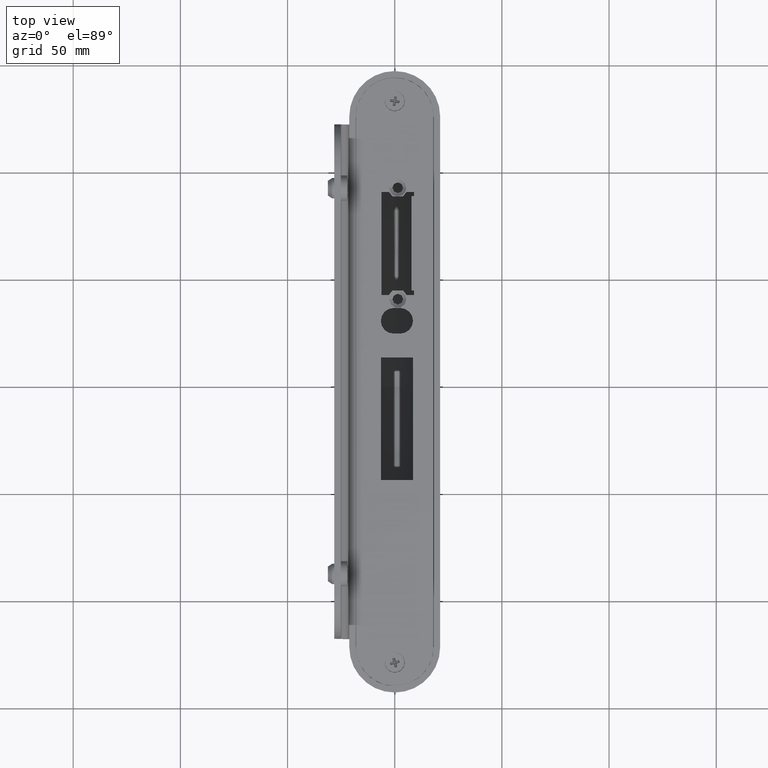
[diagram: clean part render]
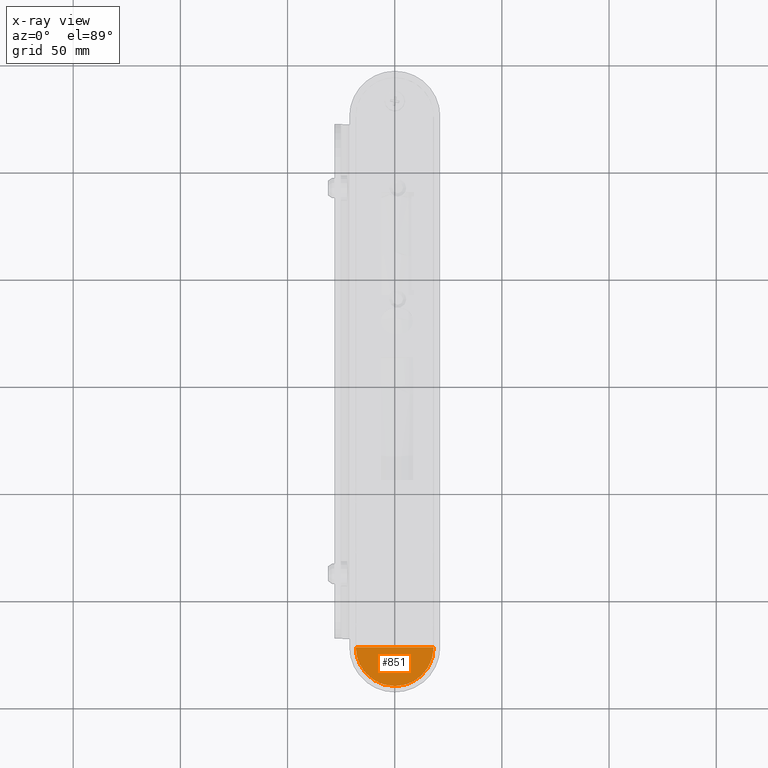
[diagram: x-ray — body ghosted, one internal face saturated and labeled with its STEP entity id]
A machine part, top view, then the same camera in x-ray: the body is ghosted and one INTERNAL B-rep face — a face not visible from any outside direction — is saturated and labeled: STEP entity #851.
In plain terms, the highlighted planar face has unit normal (0, 0, 1).
Its self-contained STEP definition (entity closure, byte-faithful):
#154 = DIRECTION ( 'NONE',  ( 1.000000000000000000, 0.000000000000000000, -0.000000000000000000 ) ) ;
#700 = CARTESIAN_POINT ( 'NONE',  ( -2.099999999999987210, -131.0000000000000000, -3.499999999999956923 ) ) ;
#719 = CARTESIAN_POINT ( 'NONE',  ( 16.57763960742311227, -131.2880444152574171, -3.499999999999958700 ) ) ;
#826 = CIRCLE ( 'NONE', #14465, 2.099999999999988987 ) ;
#851 = ADVANCED_FACE ( 'NONE', ( #3470, #6978 ), #5021, .T. ) ;
#1035 = CARTESIAN_POINT ( 'NONE',  ( 6.425966443938514239, -140.7947670916811944, -3.499999999999958256 ) ) ;
#1076 = CARTESIAN_POINT ( 'NONE',  ( -17.03090851931629857, -130.1980332967270044, -3.499999999999957367 ) ) ;
#1131 = CARTESIAN_POINT ( 'NONE',  ( -16.34835505241967368, -131.8389881563924462, -3.499999999999957812 ) ) ;
#1181 = CARTESIAN_POINT ( 'NONE',  ( -2.970426697695543794, -141.7224988217406008, -3.499999999999959144 ) ) ;
#1242 = AXIS2_PLACEMENT_3D ( 'NONE', #13771, #12455, #12285 ) ;
#1852 = CARTESIAN_POINT ( 'NONE',  ( 17.72531122719844987, -127.9249024389655034, -3.499999999999958256 ) ) ;
#2065 = CARTESIAN_POINT ( 'NONE',  ( 4.137642837378699312, -141.4902094463775484, -3.499999999999957812 ) ) ;
#2174 = CARTESIAN_POINT ( 'NONE',  ( 2.370436722894291304, -141.8116294735507665, -3.499999999999958700 ) ) ;
#2451 = CARTESIAN_POINT ( 'NONE',  ( -4.711610252952660005, -141.3760321153440884, -3.499999999999959144 ) ) ;
#2486 = EDGE_CURVE ( 'NONE', #4855, #5376, #3538, .T. ) ;
#2759 = CARTESIAN_POINT ( 'NONE',  ( -7.506644097580084996, -140.3469968225771538, -3.499999999999958256 ) ) ;
#2894 = VERTEX_POINT ( 'NONE', #700 ) ;
#3111 = CARTESIAN_POINT ( 'NONE',  ( 18.19993278026325711, -123.7999999999999972, -3.499999999999958256 ) ) ;
#3117 = CARTESIAN_POINT ( 'NONE',  ( 16.32381594625852728, -131.8237004566815642, -3.499999999999958700 ) ) ;
#3169 = CARTESIAN_POINT ( 'NONE',  ( 10.59978566233712982, -138.5624185121107530, -3.499999999999958256 ) ) ;
#3186 = CARTESIAN_POINT ( 'NONE',  ( -18.19993278026325711, -123.7999999999999972, -3.499999999999958256 ) ) ;
#3226 = CARTESIAN_POINT ( 'NONE',  ( 17.57870540353523481, -128.5042711821859882, -3.499999999999959144 ) ) ;
#3470 = FACE_BOUND ( 'NONE', #4282, .T. ) ;
#3538 = B_SPLINE_CURVE_WITH_KNOTS ( 'NONE', 3,
 ( #6835, #9277, #9321, #1852, #3226, #4488, #10596, #719, #3117, #13213, #4384, #13109, #5624, #14368, #9381, #15722, #3169, #11908, #4435, #1035, #5841, #4543, #2065, #15995, #2174, #13424, #8344, #10870 ),
 .UNSPECIFIED., .F., .F.,
 ( 4, 2, 2, 2, 2, 2, 2, 2, 2, 2, 2, 2, 2, 4 ),
 ( 0.08798751599913462451, 0.09153595532130566481, 0.09331017498239121966, 0.09508439464347678838, 0.09685861430456234322, 0.09863283396564789807, 0.1021812732878191049, 0.1039554929489047014, 0.1057297126099902979, 0.1092781519321614492, 0.1110523715932470318, 0.1128265912543326144, 0.1146008109154182109, 0.1163750305765038073 ),
 .UNSPECIFIED. ) ;
#3710 = CARTESIAN_POINT ( 'NONE',  ( -17.72798295566711957, -127.9127096710654428, -3.499999999999958700 ) ) ;
#3763 = CARTESIAN_POINT ( 'NONE',  ( -0.5946516691151471079, -141.9568596440481940, -3.499999999999958700 ) ) ;
#3971 = CARTESIAN_POINT ( 'NONE',  ( -18.19999999999999929, -123.7999999999999972, -3.499999999999958256 ) ) ;
#4282 = EDGE_LOOP ( 'NONE', ( #13133, #6623 ) ) ;
#4308 = EDGE_LOOP ( 'NONE', ( #5647, #8409, #9343 ) ) ;
#4384 = CARTESIAN_POINT ( 'NONE',  ( 15.45140728858579671, -133.3899026571880597, -3.499999999999958700 ) ) ;
#4435 = CARTESIAN_POINT ( 'NONE',  ( 8.077951886023051031, -140.1089221733890327, -3.499999999999958700 ) ) ;
#4488 = CARTESIAN_POINT ( 'NONE',  ( 17.23207616496944183, -129.6389525090205836, -3.499999999999960032 ) ) ;
#4543 = CARTESIAN_POINT ( 'NONE',  ( 4.716327226025823549, -141.3451064855083814, -3.499999999999958256 ) ) ;
#4736 = LINE ( 'NONE', #3971, #7653 ) ;
#4855 = VERTEX_POINT ( 'NONE', #3111 ) ;
#5021 = PLANE ( 'NONE',  #9988 ) ;
#5039 = CARTESIAN_POINT ( 'NONE',  ( 2.099999999999990763, -131.0000000000000000, -3.499999999999956923 ) ) ;
#5376 = VERTEX_POINT ( 'NONE', #12256 ) ;
#5624 = CARTESIAN_POINT ( 'NONE',  ( 13.70510576566193883, -135.7888591572502719, -3.499999999999958256 ) ) ;
#5647 = ORIENTED_EDGE ( 'NONE', *, *, #2486, .F. ) ;
#5841 = CARTESIAN_POINT ( 'NONE',  ( 5.859340788937852373, -140.9979369603669568, -3.499999999999957812 ) ) ;
#5999 = CARTESIAN_POINT ( 'NONE',  ( -13.27650600429843308, -136.2182467566517232, -3.499999999999959144 ) ) ;
#6107 = CARTESIAN_POINT ( 'NONE',  ( -5.846030411074127464, -141.0337013838679638, -3.499999999999958700 ) ) ;
#6219 = CARTESIAN_POINT ( 'NONE',  ( -17.23245679665010499, -129.6383981693616647, -3.499999999999956923 ) ) ;
#6381 = B_SPLINE_CURVE_WITH_KNOTS ( 'NONE', 3,
 ( #8666, #3763, #12271, #12494, #1181, #2451, #6107, #2759, #8552, #14832, #13469, #7249, #13698, #12388, #7359, #5999, #9918, #14888, #14722, #15983, #1131, #1076, #6219, #7415, #3710, #9809, #9975, #12441 ),
 .UNSPECIFIED., .F., .F.,
 ( 4, 2, 2, 2, 2, 2, 2, 2, 2, 2, 2, 2, 2, 4 ),
 ( 0.09665589401127945568, 0.09843003876489891946, 0.1002041835185183694, 0.1037524730257572830, 0.1055266177793767468, 0.1073007625329961967, 0.1090749072866156466, 0.1108490520402351104, 0.1126231967938545742, 0.1143973415474740241, 0.1179456310547130071, 0.1197197758083324848, 0.1214939205619519763, 0.1250422100691910288 ),
 .UNSPECIFIED. ) ;
#6623 = ORIENTED_EDGE ( 'NONE', *, *, #15411, .F. ) ;
#6835 = CARTESIAN_POINT ( 'NONE',  ( 18.19993278026325711, -123.7999999999999972, -3.499999999999958256 ) ) ;
#6978 = FACE_OUTER_BOUND ( 'NONE', #4308, .T. ) ;
#7019 = DIRECTION ( 'NONE',  ( -0.000000000000000000, -0.000000000000000000, 1.000000000000000000 ) ) ;
#7236 = CARTESIAN_POINT ( 'NONE',  ( 1.714505518806298385E-15, -131.0000000000000000, -3.499999999999956923 ) ) ;
#7249 = CARTESIAN_POINT ( 'NONE',  ( -10.58571707382591676, -138.5724317891713326, -3.499999999999958256 ) ) ;
#7359 = CARTESIAN_POINT ( 'NONE',  ( -12.43041577165636369, -137.0625292993982498, -3.499999999999957812 ) ) ;
#7415 = CARTESIAN_POINT ( 'NONE',  ( -17.58193255195702775, -128.4930083792081916, -3.499999999999959144 ) ) ;
#7653 = VECTOR ( 'NONE', #11829, 1000.000000000000000 ) ;
#7965 = CIRCLE ( 'NONE', #1242, 2.099999999999988987 ) ;
#8264 = EDGE_CURVE ( 'NONE', #5376, #15666, #6381, .T. ) ;
#8344 = CARTESIAN_POINT ( 'NONE',  ( 0.5916241606237048201, -141.9568596440481940, -3.499999999999959144 ) ) ;
#8409 = ORIENTED_EDGE ( 'NONE', *, *, #15225, .T. ) ;
#8552 = CARTESIAN_POINT ( 'NONE',  ( -8.047115069812088350, -140.0913963799722808, -3.499999999999957367 ) ) ;
#8666 = CARTESIAN_POINT ( 'NONE',  ( -4.127003012964374073E-14, -141.9568596440488477, -3.499999999999958256 ) ) ;
#9264 = EDGE_CURVE ( 'NONE', #10714, #2894, #7965, .T. ) ;
#9277 = CARTESIAN_POINT ( 'NONE',  ( 18.19671742464537800, -124.9835145263731278, -3.499999999999958256 ) ) ;
#9321 = CARTESIAN_POINT ( 'NONE',  ( 18.07928350883122093, -126.1627404065709612, -3.499999999999958256 ) ) ;
#9343 = ORIENTED_EDGE ( 'NONE', *, *, #8264, .F. ) ;
#9381 = CARTESIAN_POINT ( 'NONE',  ( 12.00548600629084461, -137.4473333957476484, -3.499999999999958700 ) ) ;
#9809 = CARTESIAN_POINT ( 'NONE',  ( -18.07791515352765188, -126.1673179321686433, -3.499999999999958256 ) ) ;
#9918 = CARTESIAN_POINT ( 'NONE',  ( -13.67757676051536819, -135.7765529966678173, -3.499999999999959588 ) ) ;
#9974 = CARTESIAN_POINT ( 'NONE',  ( 0.000000000000000000, -123.7999999999999972, -3.499999999999958256 ) ) ;
#9975 = CARTESIAN_POINT ( 'NONE',  ( -18.19669875172058937, -124.9903876938743963, -3.499999999999958256 ) ) ;
#9988 = AXIS2_PLACEMENT_3D ( 'NONE', #9974, #15000, #154 ) ;
#10596 = CARTESIAN_POINT ( 'NONE',  ( 17.03177045050338023, -130.1956707301869187, -3.499999999999959588 ) ) ;
#10714 = VERTEX_POINT ( 'NONE', #5039 ) ;
#10870 = CARTESIAN_POINT ( 'NONE',  ( -4.127003012964374073E-14, -141.9568596440488477, -3.499999999999958256 ) ) ;
#11829 = DIRECTION ( 'NONE',  ( -1.000000000000000000, -0.000000000000000000, -0.000000000000000000 ) ) ;
#11908 = CARTESIAN_POINT ( 'NONE',  ( 9.121025334093880943, -139.5501703778407432, -3.499999999999959144 ) ) ;
#11990 = DIRECTION ( 'NONE',  ( 1.000000000000000000, 0.000000000000000000, 0.000000000000000000 ) ) ;
#12256 = CARTESIAN_POINT ( 'NONE',  ( -4.127003012964374073E-14, -141.9568596440488477, -3.499999999999958256 ) ) ;
#12271 = CARTESIAN_POINT ( 'NONE',  ( -1.195703646564088229, -141.9273318590321651, -3.499999999999958256 ) ) ;
#12285 = DIRECTION ( 'NONE',  ( 1.000000000000000000, 0.000000000000000000, 0.000000000000000000 ) ) ;
#12388 = CARTESIAN_POINT ( 'NONE',  ( -11.98391782211680123, -137.4660347494342432, -3.499999999999958256 ) ) ;
#12441 = CARTESIAN_POINT ( 'NONE',  ( -18.19993278026325711, -123.7999999999999972, -3.499999999999958256 ) ) ;
#12455 = DIRECTION ( 'NONE',  ( -0.000000000000000000, -0.000000000000000000, 1.000000000000000000 ) ) ;
#12494 = CARTESIAN_POINT ( 'NONE',  ( -2.383391754447379274, -141.8099459269271279, -3.499999999999957812 ) ) ;
#13109 = CARTESIAN_POINT ( 'NONE',  ( 14.45664437365620181, -134.8750691761927385, -3.499999999999958700 ) ) ;
#13133 = ORIENTED_EDGE ( 'NONE', *, *, #9264, .F. ) ;
#13213 = CARTESIAN_POINT ( 'NONE',  ( 15.76156855363764997, -132.8735244861689182, -3.499999999999957812 ) ) ;
#13424 = CARTESIAN_POINT ( 'NONE',  ( 1.184029269734879541, -141.9280741192656876, -3.499999999999958256 ) ) ;
#13469 = CARTESIAN_POINT ( 'NONE',  ( -9.601434166336360931, -139.2286438818991883, -3.499999999999959144 ) ) ;
#13698 = CARTESIAN_POINT ( 'NONE',  ( -11.06233680526118413, -138.2201019218360614, -3.499999999999957367 ) ) ;
#13771 = CARTESIAN_POINT ( 'NONE',  ( 1.714505518806298385E-15, -131.0000000000000000, -3.499999999999956923 ) ) ;
#14368 = CARTESIAN_POINT ( 'NONE',  ( 12.44712947248478940, -137.0466834490041208, -3.499999999999957812 ) ) ;
#14465 = AXIS2_PLACEMENT_3D ( 'NONE', #7236, #7019, #11990 ) ;
#14722 = CARTESIAN_POINT ( 'NONE',  ( -14.79460550842329525, -134.3711946249769085, -3.499999999999958700 ) ) ;
#14832 = CARTESIAN_POINT ( 'NONE',  ( -9.093770204551567815, -139.5325248810493690, -3.499999999999959144 ) ) ;
#14888 = CARTESIAN_POINT ( 'NONE',  ( -14.43590528574918075, -134.8541812728749676, -3.499999999999959588 ) ) ;
#15000 = DIRECTION ( 'NONE',  ( 0.000000000000000000, 0.000000000000000000, 1.000000000000000000 ) ) ;
#15225 = EDGE_CURVE ( 'NONE', #4855, #15666, #4736, .T. ) ;
#15411 = EDGE_CURVE ( 'NONE', #2894, #10714, #826, .T. ) ;
#15666 = VERTEX_POINT ( 'NONE', #3186 ) ;
#15722 = CARTESIAN_POINT ( 'NONE',  ( 11.07829666545451452, -138.2080548497126813, -3.499999999999958700 ) ) ;
#15983 = CARTESIAN_POINT ( 'NONE',  ( -15.79017424863789287, -132.8827144321718379, -3.499999999999959588 ) ) ;
#15995 = CARTESIAN_POINT ( 'NONE',  ( 2.965913248479162156, -141.7234295541077813, -3.499999999999957812 ) ) ;